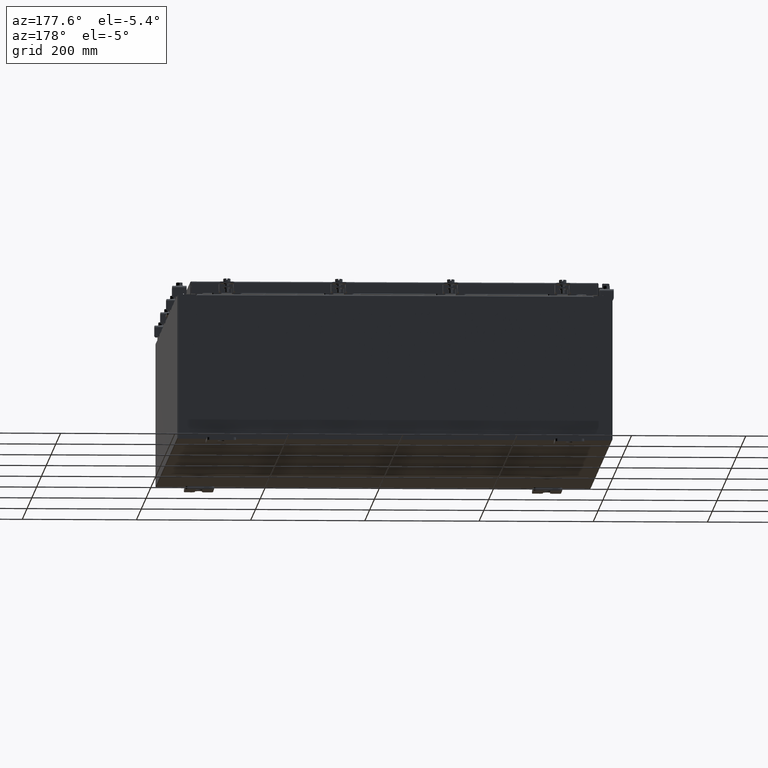
[diagram: clean part render]
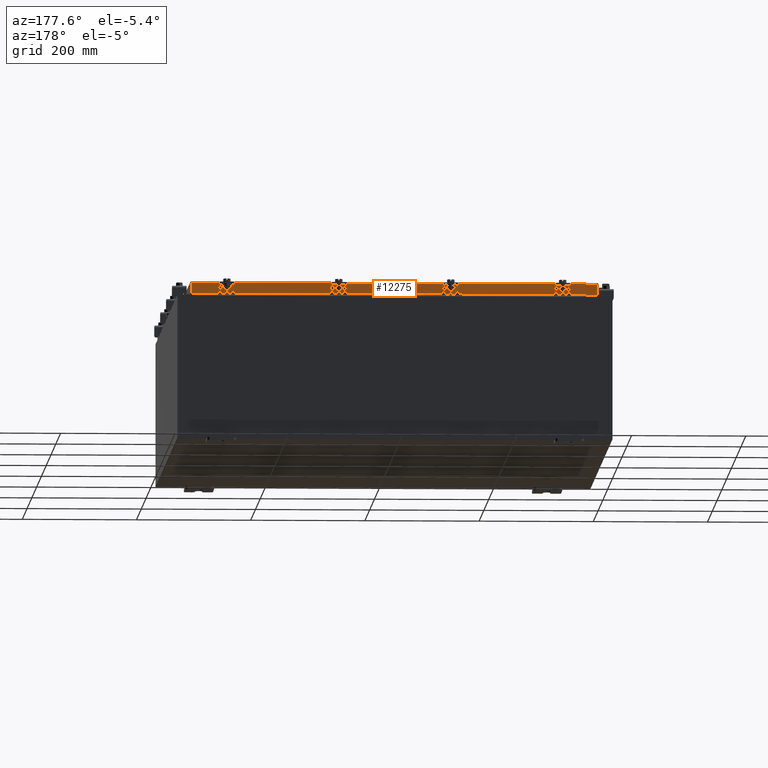
[diagram: same view with one face highlighted and labeled with its STEP entity id]
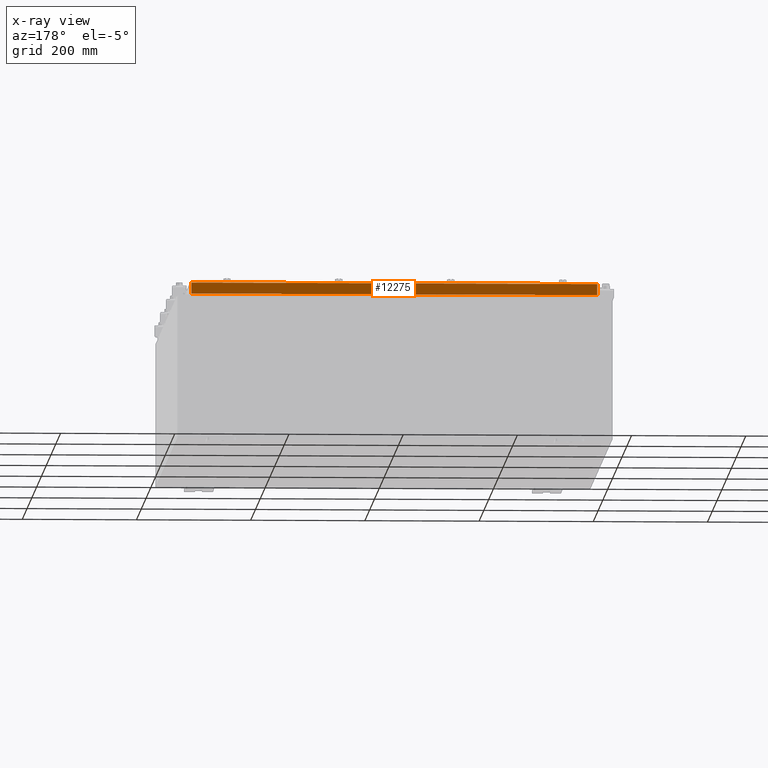
[diagram: x-ray of the same camera — body ghosted, the highlighted face saturated]
A machine part, auxiliary view. The second image highlights one B-rep face of the part: STEP entity #12275.
The next image is the same camera in x-ray: the body ghosted, the highlighted face saturated — about 0% of this face is hidden behind the body in this view.
In plain terms, the highlighted planar face has unit normal (0, -1, -0).
Its self-contained STEP definition (entity closure, byte-faithful):
#18 = VERTEX_POINT ( 'NONE', #18959 ) ;
#1736 = LINE ( 'NONE', #12955, #6886 ) ;
#1749 = ORIENTED_EDGE ( 'NONE', *, *, #7998, .F. ) ;
#2172 = EDGE_CURVE ( 'NONE', #4437, #16786, #16811, .T. ) ;
#2315 = CARTESIAN_POINT ( 'NONE',  ( -13.98915786437626900, 17.09399999999999800, -0.07469999999999978000 ) ) ;
#2549 = DIRECTION ( 'NONE',  ( 0.0000000000000000000, 2.818880942772347100E-015, -1.000000000000000000 ) ) ;
#2632 = EDGE_CURVE ( 'NONE', #17770, #19004, #18115, .T. ) ;
#3039 = PLANE ( 'NONE',  #14197 ) ;
#3285 = ORIENTED_EDGE ( 'NONE', *, *, #2632, .F. ) ;
#4139 = CARTESIAN_POINT ( 'NONE',  ( -14.07799999999999800, 17.09399999999999800, -0.08770000000000007000 ) ) ;
#4156 = DIRECTION ( 'NONE',  ( -1.000000000000000000, -1.367515671240777000E-031, -7.762034361881699600E-017 ) ) ;
#4310 = CARTESIAN_POINT ( 'NONE',  ( -13.23915786437626400, 17.09399999999999800, -0.8500000000000040900 ) ) ;
#4437 = VERTEX_POINT ( 'NONE', #10802 ) ;
#4771 = CARTESIAN_POINT ( 'NONE',  ( -6.077841349889359500E-030, 17.09399999999999800, 4.844676449176206800E-014 ) ) ;
#5774 = EDGE_CURVE ( 'NONE', #18, #4437, #20985, .T. ) ;
#6039 = DIRECTION ( 'NONE',  ( 1.000000000000000000, -0.0000000000000000000, -0.0000000000000000000 ) ) ;
#6523 = DIRECTION ( 'NONE',  ( 3.555540745226020900E-031, -1.000000000000000000, -2.818880942772347100E-015 ) ) ;
#6818 = CARTESIAN_POINT ( 'NONE',  ( 13.23915786437625100, 17.09399999999999800, -0.8500000000000040900 ) ) ;
#6886 = VECTOR ( 'NONE', #2549, 39.37007874015748100 ) ;
#7181 = DIRECTION ( 'NONE',  ( -0.0000000000000000000, 2.818880942772347100E-015, -1.000000000000000000 ) ) ;
#7998 = EDGE_CURVE ( 'NONE', #16786, #19234, #18358, .T. ) ;
#8085 = FACE_OUTER_BOUND ( 'NONE', #22136, .T. ) ;
#8261 = VECTOR ( 'NONE', #4156, 39.37007874015748100 ) ;
#9163 = CARTESIAN_POINT ( 'NONE',  ( -14.07799999999999800, 17.09399999999999800, -0.8500000000000032000 ) ) ;
#9478 = EDGE_CURVE ( 'NONE', #18, #19004, #1736, .T. ) ;
#10563 = VECTOR ( 'NONE', #6039, 39.37007874015748100 ) ;
#10802 = CARTESIAN_POINT ( 'NONE',  ( -13.98915786437626700, 17.09399999999999800, -0.08769999999999897300 ) ) ;
#11070 = CARTESIAN_POINT ( 'NONE',  ( -13.23915786437626400, 17.09399999999999800, -0.8500000000000040900 ) ) ;
#11183 = ORIENTED_EDGE ( 'NONE', *, *, #9478, .T. ) ;
#11574 = ORIENTED_EDGE ( 'NONE', *, *, #13667, .F. ) ;
#12275 = ADVANCED_FACE ( 'NONE', ( #8085 ), #3039, .F. ) ;
#12845 = CARTESIAN_POINT ( 'NONE',  ( -13.98915786437626900, 17.09399999999999800, -0.8500000000000032000 ) ) ;
#12955 = CARTESIAN_POINT ( 'NONE',  ( 13.98915786437626700, 17.09399999999999800, 4.844676449176206800E-014 ) ) ;
#13523 = VECTOR ( 'NONE', #18795, 39.37007874015748100 ) ;
#13667 = EDGE_CURVE ( 'NONE', #19234, #17770, #19811, .T. ) ;
#13758 = VECTOR ( 'NONE', #17869, 39.37007874015748100 ) ;
#14084 = CARTESIAN_POINT ( 'NONE',  ( 13.98915786437626500, 17.09399999999999800, -0.8499999999999996400 ) ) ;
#14197 = AXIS2_PLACEMENT_3D ( 'NONE', #4771, #6523, #18669 ) ;
#16167 = VECTOR ( 'NONE', #7181, 39.37007874015748100 ) ;
#16786 = VERTEX_POINT ( 'NONE', #12845 ) ;
#16811 = LINE ( 'NONE', #2315, #16167 ) ;
#17770 = VERTEX_POINT ( 'NONE', #6818 ) ;
#17869 = DIRECTION ( 'NONE',  ( 1.000000000000000000, -4.379057701015054300E-047, 1.261330583805776300E-016 ) ) ;
#18115 = LINE ( 'NONE', #19239, #13523 ) ;
#18358 = LINE ( 'NONE', #9163, #13758 ) ;
#18669 = DIRECTION ( 'NONE',  ( 0.0000000000000000000, 2.818880942772347100E-015, -1.000000000000000000 ) ) ;
#18795 = DIRECTION ( 'NONE',  ( 1.000000000000000000, -4.379057701015054300E-047, 1.261330583805776300E-016 ) ) ;
#18959 = CARTESIAN_POINT ( 'NONE',  ( 13.98915786437626500, 17.09399999999999800, -0.08769999999999787700 ) ) ;
#19004 = VERTEX_POINT ( 'NONE', #14084 ) ;
#19234 = VERTEX_POINT ( 'NONE', #11070 ) ;
#19239 = CARTESIAN_POINT ( 'NONE',  ( -14.07799999999999800, 17.09399999999999800, -0.8500000000000032000 ) ) ;
#19811 = LINE ( 'NONE', #4310, #10563 ) ;
#20736 = ORIENTED_EDGE ( 'NONE', *, *, #2172, .F. ) ;
#20880 = ORIENTED_EDGE ( 'NONE', *, *, #5774, .F. ) ;
#20985 = LINE ( 'NONE', #4139, #8261 ) ;
#22136 = EDGE_LOOP ( 'NONE', ( #20880, #11183, #3285, #11574, #1749, #20736 ) ) ;